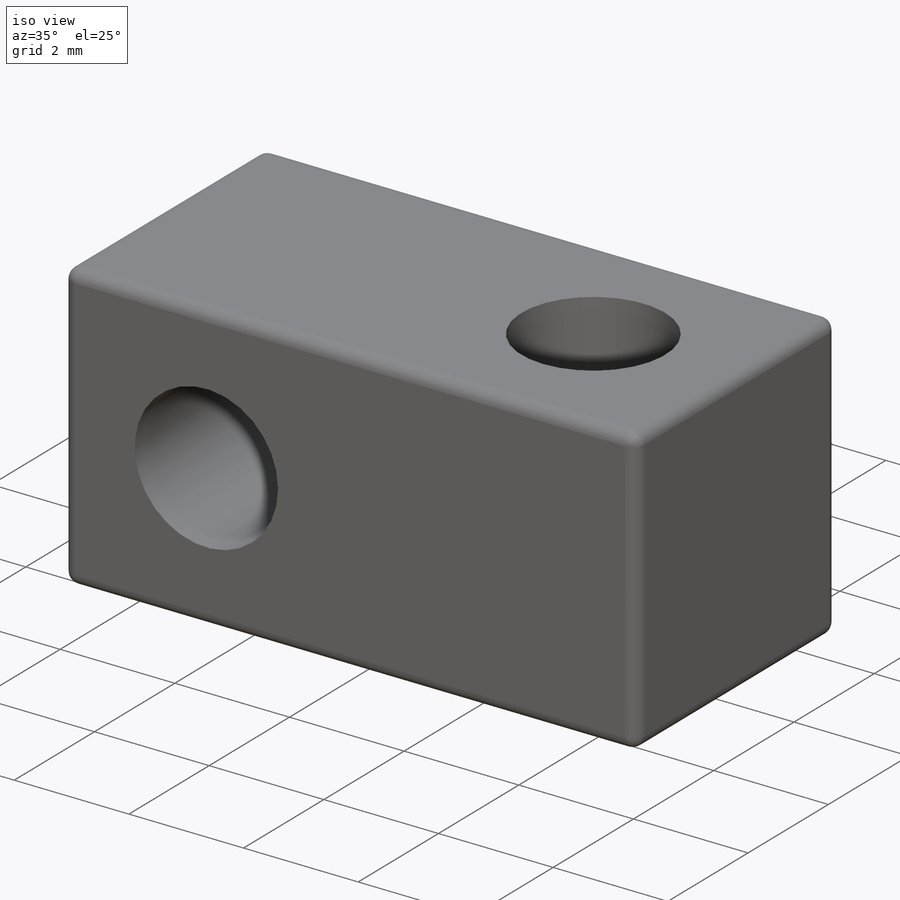
[diagram: iso view]
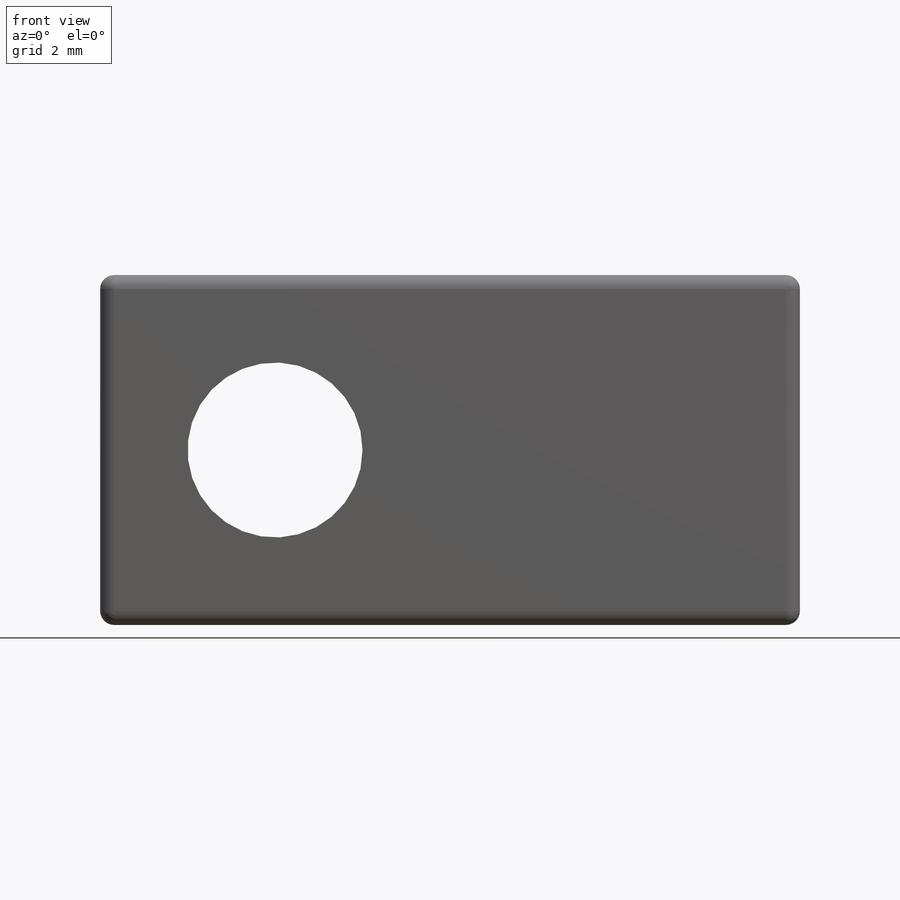
[diagram: front view]
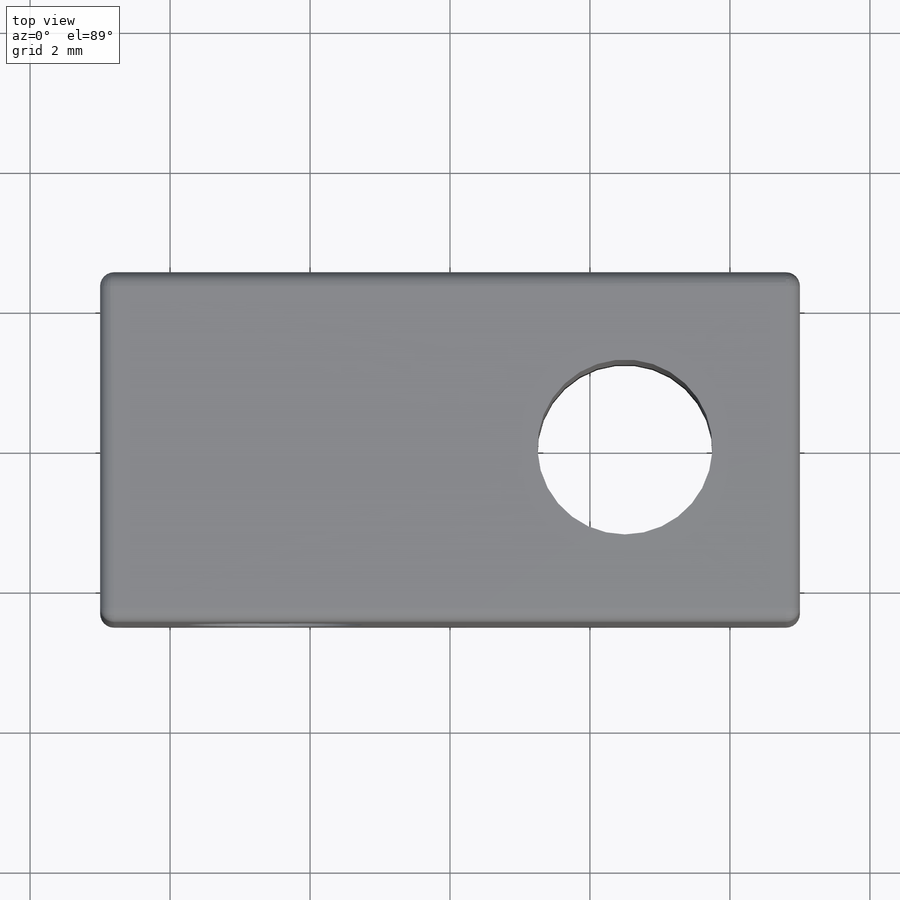
[diagram: top view]
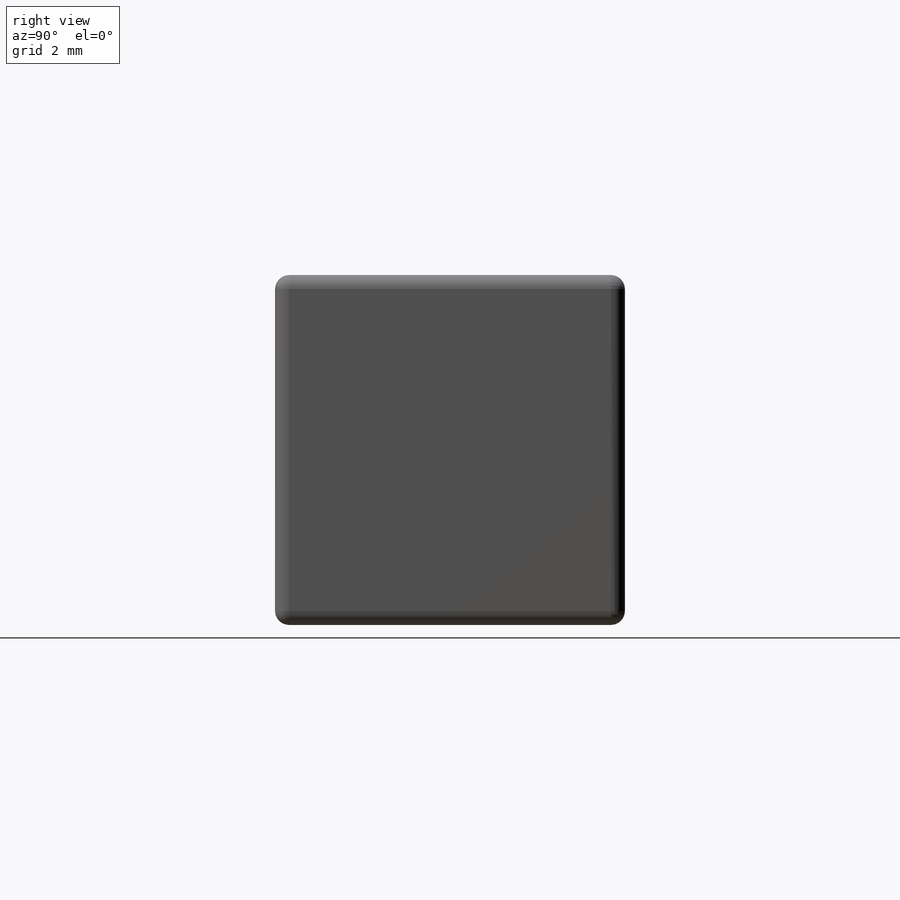
[diagram: right view]
SOLIDWORKS PART (.sldprt)
format: sldprt  version: not decoded by parser v0  size: 209,920 bytes
history: native  units: mm
features: fillet x4, plane x3, sketch x3, cut_extrude x2, material x1, extrude x1 (+9 scaffold rows collapsed)
feature tree (23):
  scaffold x9  (default folders/planes/origin — collapsed)
  material  "Matériau <non spécifié>"
  plane  "Plan de face"
  plane  "Plan de dessus"
  plane  "Plan de droite"
  sketch  "Esquisse1"  dims[c1.D1=~42.528053mm c1.D2=~67.378783mm c2.D1=5.0mm c2.D2=2.5mm c2.D3=10.0mm c2.D4=5.0mm]
  extrude  "Boss.-Extru.1"  Depth=5mm
  fillet  "Congé1"  Radius=0.2mm
  fillet  "Congé2"  Radius=0.2mm
  fillet  "Congé3"  Radius=0.2mm
  fillet  "Congé4"  Radius=0.2mm
  sketch  "Esquisse2"  dims[c1.D1=~1.340052mm c1.D3=2.5mm c2.D1=2.5mm c2.D2=2.5mm]
  cut_extrude  "Enlèv. mat.-Extru.1"  Depth=5mm
  sketch  "Esquisse3"  dims[c1.D1=~1.916361mm c1.D3=2.5mm c2.D1=2.5mm c2.D2=2.5mm]
  cut_extrude  "Enlèv. mat.-Extru.2"  Depth=5mm
decode coverage: 10 of 10 modeling features carry decoded parameters
note: ~ marks probable driven/reference dimensions
note: suppression state not decoded; provenance and decode notes live in map.json
